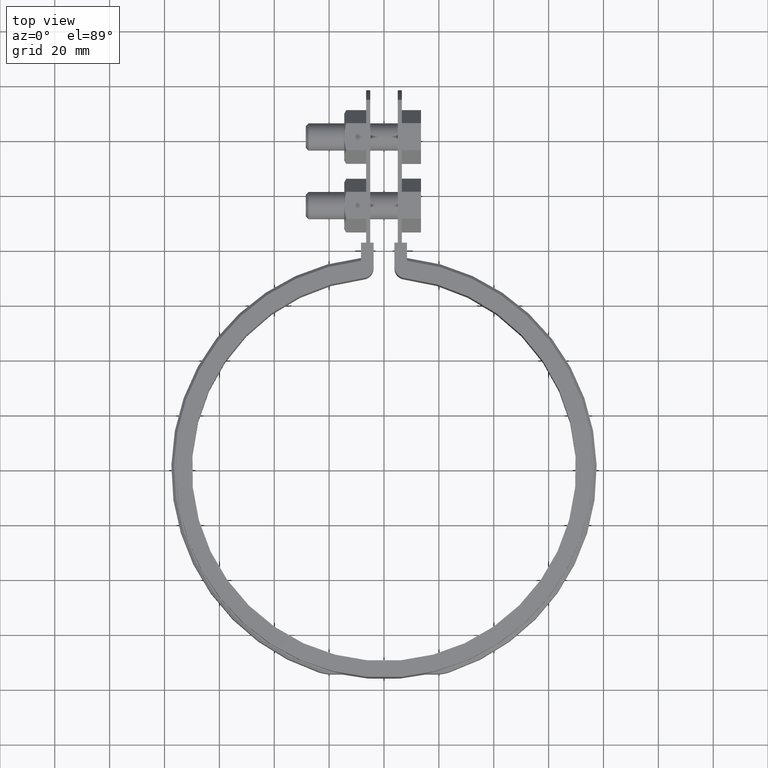
[diagram: clean part render]
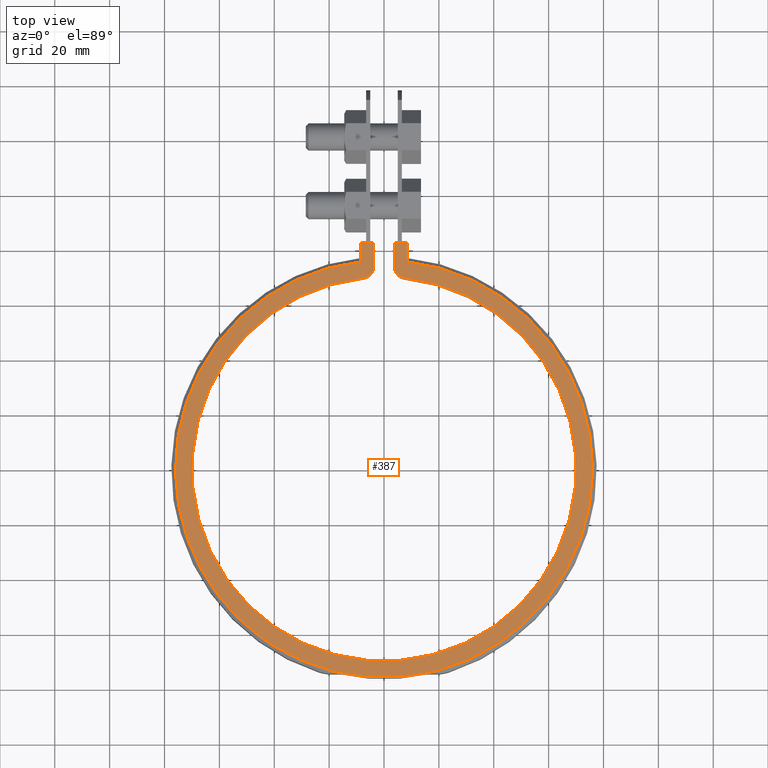
[diagram: same view with one face highlighted and labeled with its STEP entity id]
A machine part, top view. The second image highlights one B-rep face of the part: STEP entity #387.
In plain terms, the highlighted planar face has unit normal (0, 0, 1).
Its self-contained STEP definition (entity closure, byte-faithful):
#387 = ADVANCED_FACE( '', ( #630 ), #631, .T. );
#630 = FACE_OUTER_BOUND( '', #1716, .T. );
#631 = PLANE( '', #1717 );
#1716 = EDGE_LOOP( '', ( #3997, #3998, #3999, #4000, #4001, #4002, #4003, #4004, #4005, #4006 ) );
#1717 = AXIS2_PLACEMENT_3D( '', #4007, #4008, #4009 );
#3997 = ORIENTED_EDGE( '', *, *, #4696, .T. );
#3998 = ORIENTED_EDGE( '', *, *, #4688, .T. );
#3999 = ORIENTED_EDGE( '', *, *, #4746, .T. );
#4000 = ORIENTED_EDGE( '', *, *, #4757, .T. );
#4001 = ORIENTED_EDGE( '', *, *, #4829, .T. );
#4002 = ORIENTED_EDGE( '', *, *, #4732, .T. );
#4003 = ORIENTED_EDGE( '', *, *, #4830, .T. );
#4004 = ORIENTED_EDGE( '', *, *, #4831, .T. );
#4005 = ORIENTED_EDGE( '', *, *, #4832, .T. );
#4006 = ORIENTED_EDGE( '', *, *, #4833, .T. );
#4007 = CARTESIAN_POINT( '', ( 0.000000000000000, 0.000000000000000, 1.50000000000000 ) );
#4008 = DIRECTION( '', ( 0.000000000000000, 0.000000000000000, 1.00000000000000 ) );
#4009 = DIRECTION( '', ( 0.000000000000000, 1.00000000000000, 0.000000000000000 ) );
#4688 = EDGE_CURVE( '', #5130, #5131, #5132, .T. );
#4696 = EDGE_CURVE( '', #5146, #5130, #5147, .T. );
#4732 = EDGE_CURVE( '', #5209, #5210, #5211, .T. );
#4746 = EDGE_CURVE( '', #5131, #5236, #5238, .T. );
#4757 = EDGE_CURVE( '', #5236, #5257, #5259, .T. );
#4829 = EDGE_CURVE( '', #5257, #5209, #5369, .T. );
#4830 = EDGE_CURVE( '', #5210, #5370, #5371, .T. );
#4831 = EDGE_CURVE( '', #5370, #5372, #5373, .T. );
#4832 = EDGE_CURVE( '', #5372, #5374, #5375, .T. );
#4833 = EDGE_CURVE( '', #5374, #5146, #5376, .T. );
#5130 = VERTEX_POINT( '', #6697 );
#5131 = VERTEX_POINT( '', #6698 );
#5132 = LINE( '', #6699, #6700 );
#5146 = VERTEX_POINT( '', #6721 );
#5147 = LINE( '', #6722, #6723 );
#5209 = VERTEX_POINT( '', #7582 );
#5210 = VERTEX_POINT( '', #7583 );
#5211 = LINE( '', #7584, #7585 );
#5236 = VERTEX_POINT( '', #7626 );
#5238 = LINE( '', #7629, #7630 );
#5257 = VERTEX_POINT( '', #7658 );
#5259 = CIRCLE( '', #7661, 76.0000000000000 );
#5369 = LINE( '', #7918, #7919 );
#5370 = VERTEX_POINT( '', #7920 );
#5371 = LINE( '', #7921, #7922 );
#5372 = VERTEX_POINT( '', #7923 );
#5373 = CIRCLE( '', #7924, 4.00000000000000 );
#5374 = VERTEX_POINT( '', #7925 );
#5375 = CIRCLE( '', #7926, 70.0000000000000 );
#5376 = CIRCLE( '', #7927, 4.00000000000000 );
#6697 = CARTESIAN_POINT( '', ( -3.80000000000000, 82.5000000000000, 1.50000000000000 ) );
#6698 = CARTESIAN_POINT( '', ( -8.40000000000002, 82.5000000000000, 1.50000000000000 ) );
#6699 = CARTESIAN_POINT( '', ( -3.80000000000000, 82.5000000000000, 1.50000000000000 ) );
#6700 = VECTOR( '', #8520, 1000.00000000000 );
#6721 = CARTESIAN_POINT( '', ( -3.80000000000000, 73.5877707231304, 1.50000000000000 ) );
#6722 = CARTESIAN_POINT( '', ( -3.80000000000000, 73.5877707231304, 1.50000000000000 ) );
#6723 = VECTOR( '', #8528, 1000.00000000000 );
#7582 = CARTESIAN_POINT( '', ( 8.39999999999999, 82.5000000000000, 1.50000000000000 ) );
#7583 = CARTESIAN_POINT( '', ( 3.80000000000003, 82.5000000000000, 1.50000000000000 ) );
#7584 = CARTESIAN_POINT( '', ( 8.40000000000002, 82.5000000000000, 1.50000000000000 ) );
#7585 = VECTOR( '', #8548, 1000.00000000000 );
#7626 = CARTESIAN_POINT( '', ( -8.40000000000000, 75.5343630409366, 1.50000000000000 ) );
#7629 = CARTESIAN_POINT( '', ( -8.40000000000000, 82.5000000000000, 1.50000000000000 ) );
#7630 = VECTOR( '', #8560, 1000.00000000000 );
#7658 = CARTESIAN_POINT( '', ( 8.39999999999992, 75.5343630409366, 1.50000000000000 ) );
#7661 = AXIS2_PLACEMENT_3D( '', #8577, #8578, #8579 );
#7918 = CARTESIAN_POINT( '', ( 8.39999999999999, 75.5343630409366, 1.50000000000000 ) );
#7919 = VECTOR( '', #8711, 1000.00000000000 );
#7920 = CARTESIAN_POINT( '', ( 3.80000000000000, 73.5877707231304, 1.50000000000000 ) );
#7921 = CARTESIAN_POINT( '', ( 3.80000000000000, 82.5000000000000, 1.50000000000000 ) );
#7922 = VECTOR( '', #8712, 1000.00000000000 );
#7923 = CARTESIAN_POINT( '', ( 7.37837837837830, 69.6100533867449, 1.50000000000000 ) );
#7924 = AXIS2_PLACEMENT_3D( '', #8713, #8714, #8715 );
#7925 = CARTESIAN_POINT( '', ( -7.37837837837833, 69.6100533867449, 1.50000000000000 ) );
#7926 = AXIS2_PLACEMENT_3D( '', #8716, #8717, #8718 );
#7927 = AXIS2_PLACEMENT_3D( '', #8719, #8720, #8721 );
#8520 = DIRECTION( '', ( -1.00000000000000, 0.000000000000000, 0.000000000000000 ) );
#8528 = DIRECTION( '', ( 6.17161236645595E-017, 1.00000000000000, 0.000000000000000 ) );
#8548 = DIRECTION( '', ( -1.00000000000000, 0.000000000000000, 0.000000000000000 ) );
#8560 = DIRECTION( '', ( -6.00481203222741E-017, -1.00000000000000, 0.000000000000000 ) );
#8577 = CARTESIAN_POINT( '', ( 0.000000000000000, 0.000000000000000, 1.50000000000000 ) );
#8578 = DIRECTION( '', ( 0.000000000000000, 0.000000000000000, 1.00000000000000 ) );
#8579 = DIRECTION( '', ( 1.00000000000000, 0.000000000000000, 0.000000000000000 ) );
#8711 = DIRECTION( '', ( 6.67201336914157E-017, 1.00000000000000, 0.000000000000000 ) );
#8712 = DIRECTION( '', ( -6.00481203222741E-017, -1.00000000000000, 0.000000000000000 ) );
#8713 = CARTESIAN_POINT( '', ( 7.80000000000000, 73.5877707231303, 1.50000000000000 ) );
#8714 = DIRECTION( '', ( 0.000000000000000, 0.000000000000000, 1.00000000000000 ) );
#8715 = DIRECTION( '', ( -1.00000000000000, 0.000000000000000, 0.000000000000000 ) );
#8716 = CARTESIAN_POINT( '', ( 0.000000000000000, 0.000000000000000, 1.50000000000000 ) );
#8717 = DIRECTION( '', ( 0.000000000000000, 0.000000000000000, -1.00000000000000 ) );
#8718 = DIRECTION( '', ( 1.00000000000000, 0.000000000000000, 0.000000000000000 ) );
#8719 = CARTESIAN_POINT( '', ( -7.80000000000000, 73.5877707231304, 1.50000000000000 ) );
#8720 = DIRECTION( '', ( 0.000000000000000, 0.000000000000000, 1.00000000000000 ) );
#8721 = DIRECTION( '', ( 1.00000000000000, 0.000000000000000, 0.000000000000000 ) );